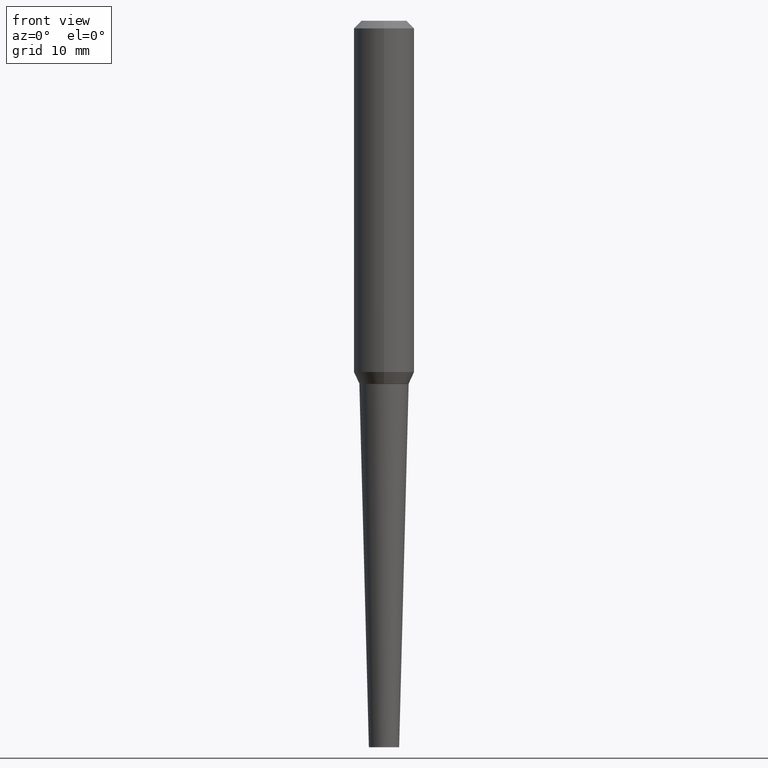
[diagram: clean part render]
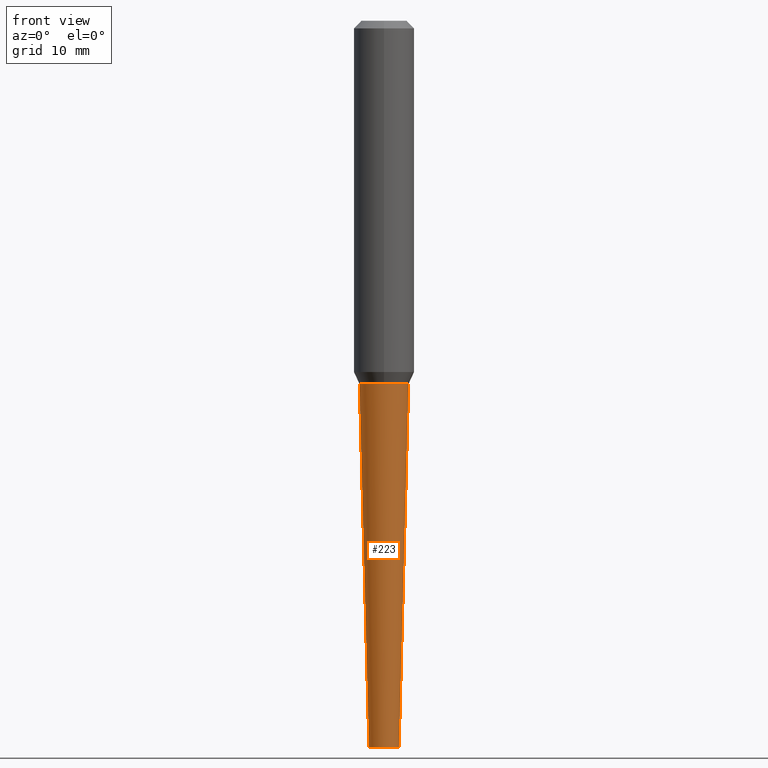
[diagram: same view with one face highlighted and labeled with its STEP entity id]
A machine part, front view. The second image highlights one B-rep face of the part: STEP entity #223.
In plain terms, the highlighted conical surface has half-angle 1.5 deg.
Its self-contained STEP definition (entity closure, byte-faithful):
#7 = CARTESIAN_POINT ( 'NONE',  ( -0.1017788823537697646, -4.514039553162187952E-15, -1.500000000000000222 ) ) ;
#20 = ORIENTED_EDGE ( 'NONE', *, *, #391, .F. ) ;
#34 = EDGE_CURVE ( 'NONE', #52, #225, #180, .T. ) ;
#50 = CARTESIAN_POINT ( 'NONE',  ( 3.668203209277704895E-29, -5.237222008264718177E-15, -1.500000000000000222 ) ) ;
#52 = VERTEX_POINT ( 'NONE', #411 ) ;
#53 = AXIS2_PLACEMENT_3D ( 'NONE', #368, #206, #336 ) ;
#59 = DIRECTION ( 'NONE',  ( 0.02617694830786594651, 3.307492242340466707E-15, 0.9996573249755573709 ) ) ;
#60 = CARTESIAN_POINT ( 'NONE',  ( -0.06250000000000018041, -1.003035480667937216E-14, -3.000000000000000444 ) ) ;
#86 = CARTESIAN_POINT ( 'NONE',  ( 0.06250000000000018041, -1.091087918388483118E-14, -3.000000000000000444 ) ) ;
#102 = EDGE_LOOP ( 'NONE', ( #332, #366, #105, #20 ) ) ;
#105 = ORIENTED_EDGE ( 'NONE', *, *, #144, .T. ) ;
#118 = CIRCLE ( 'NONE', #339, 0.1017788823537697646 ) ;
#120 = CARTESIAN_POINT ( 'NONE',  ( 0.1017788823537697646, -5.947940145117713967E-15, -1.500000000000000222 ) ) ;
#134 = VERTEX_POINT ( 'NONE', #120 ) ;
#135 = DIRECTION ( 'NONE',  ( -2.445468806185136597E-29, 3.491481338843145583E-15, 1.000000000000000000 ) ) ;
#144 = EDGE_CURVE ( 'NONE', #171, #134, #252, .T. ) ;
#170 = VECTOR ( 'NONE', #59, 39.37007874015748143 ) ;
#171 = VERTEX_POINT ( 'NONE', #388 ) ;
#180 = LINE ( 'NONE', #60, #389 ) ;
#191 = DIRECTION ( 'NONE',  ( -2.445468806185136597E-29, 3.491481338843145583E-15, 1.000000000000000000 ) ) ;
#194 = DIRECTION ( 'NONE',  ( 1.000000000000000000, -6.982962677686273810E-15, 0.000000000000000000 ) ) ;
#206 = DIRECTION ( 'NONE',  ( -2.445468806185136597E-29, 3.491481338843145583E-15, 1.000000000000000000 ) ) ;
#210 = CIRCLE ( 'NONE', #53, 0.06250000000000018041 ) ;
#223 = ADVANCED_FACE ( 'NONE', ( #354 ), #286, .T. ) ;
#225 = VERTEX_POINT ( 'NONE', #7 ) ;
#252 = LINE ( 'NONE', #86, #170 ) ;
#282 = DIRECTION ( 'NONE',  ( -0.02617694830786594651, 3.676283300035235311E-15, 0.9996573249755573709 ) ) ;
#286 = CONICAL_SURFACE ( 'NONE', #400, 0.06250000000000018041, 0.02617993877990773197 ) ;
#326 = CARTESIAN_POINT ( 'NONE',  ( 7.336406418555409790E-29, -1.047444401652943635E-14, -3.000000000000000444 ) ) ;
#332 = ORIENTED_EDGE ( 'NONE', *, *, #34, .F. ) ;
#336 = DIRECTION ( 'NONE',  ( 1.000000000000000000, -6.982962677686273810E-15, 0.000000000000000000 ) ) ;
#339 = AXIS2_PLACEMENT_3D ( 'NONE', #50, #135, #408 ) ;
#354 = FACE_OUTER_BOUND ( 'NONE', #102, .T. ) ;
#366 = ORIENTED_EDGE ( 'NONE', *, *, #377, .T. ) ;
#368 = CARTESIAN_POINT ( 'NONE',  ( 7.336406418555409790E-29, -1.047444401652943635E-14, -3.000000000000000444 ) ) ;
#377 = EDGE_CURVE ( 'NONE', #52, #171, #210, .T. ) ;
#388 = CARTESIAN_POINT ( 'NONE',  ( 0.06250000000000018041, -1.091087918388483118E-14, -3.000000000000000444 ) ) ;
#389 = VECTOR ( 'NONE', #282, 39.37007874015748143 ) ;
#391 = EDGE_CURVE ( 'NONE', #225, #134, #118, .T. ) ;
#400 = AXIS2_PLACEMENT_3D ( 'NONE', #326, #191, #194 ) ;
#408 = DIRECTION ( 'NONE',  ( 1.000000000000000000, -6.982962677686263555E-15, 0.000000000000000000 ) ) ;
#411 = CARTESIAN_POINT ( 'NONE',  ( -0.06250000000000018041, -7.272197179920781633E-15, -3.000000000000000444 ) ) ;